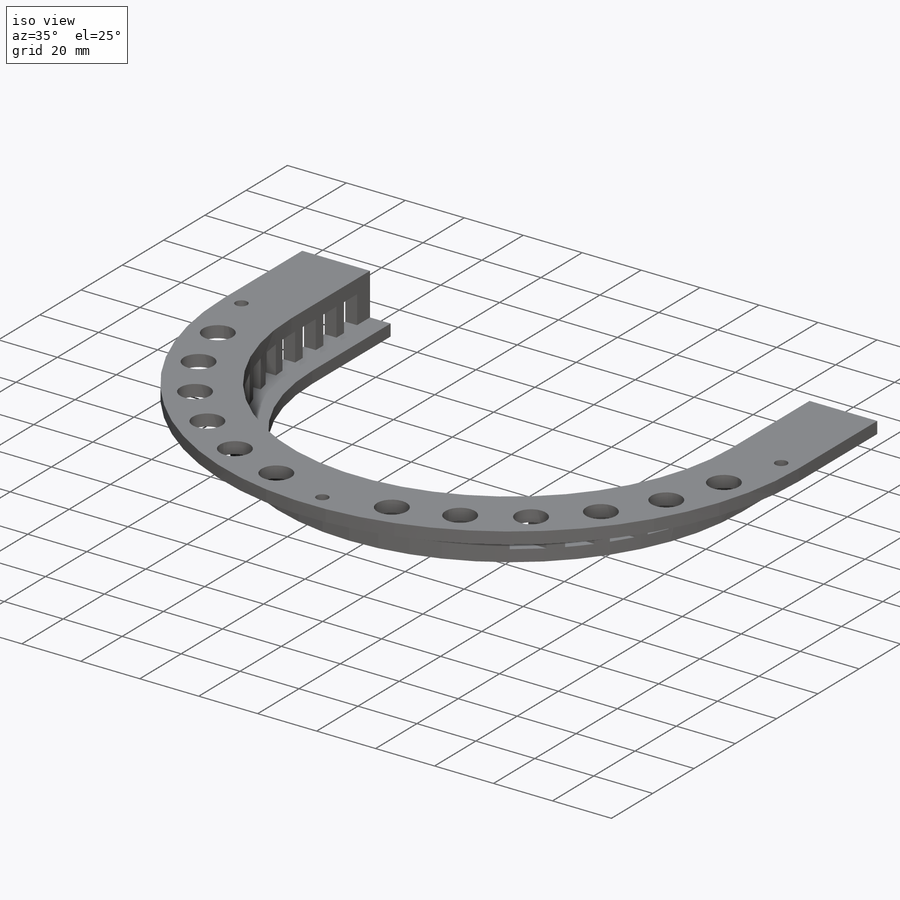
[diagram: iso view]
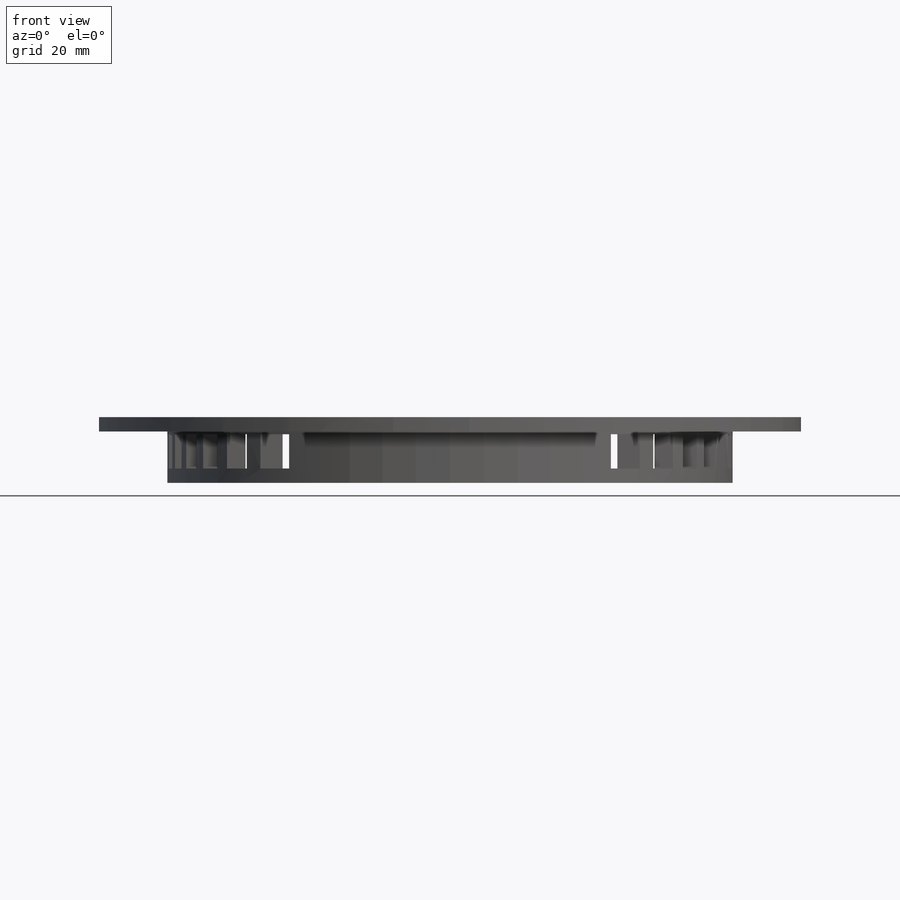
[diagram: front view]
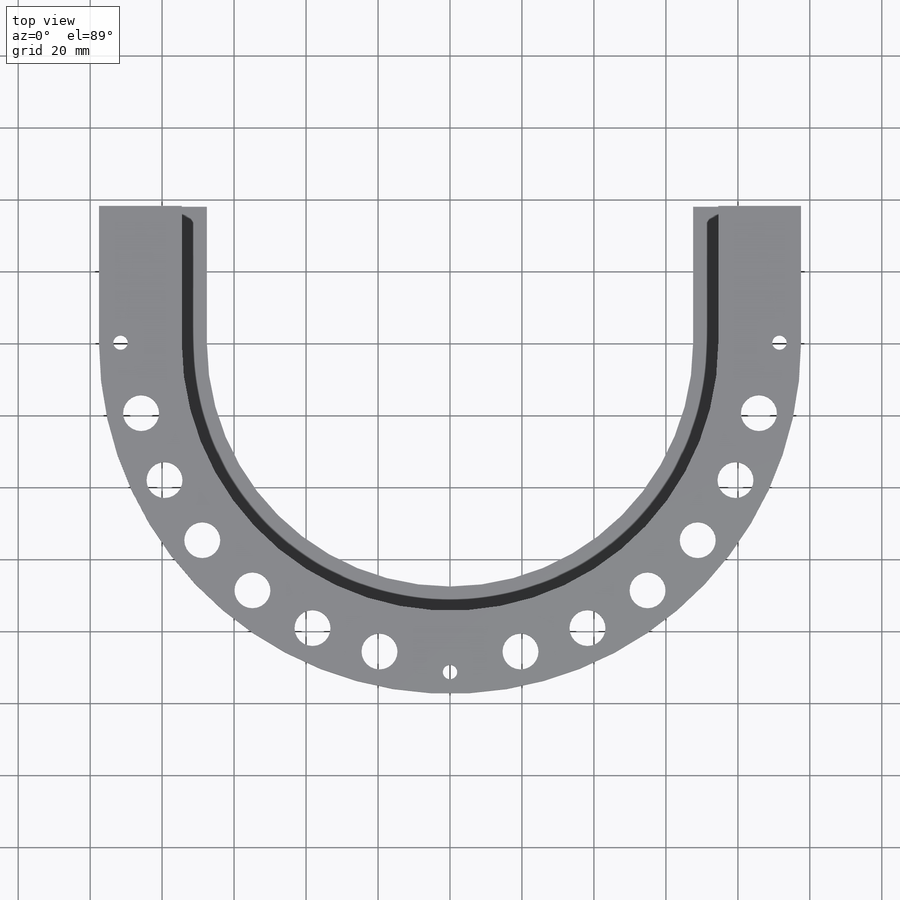
[diagram: top view]
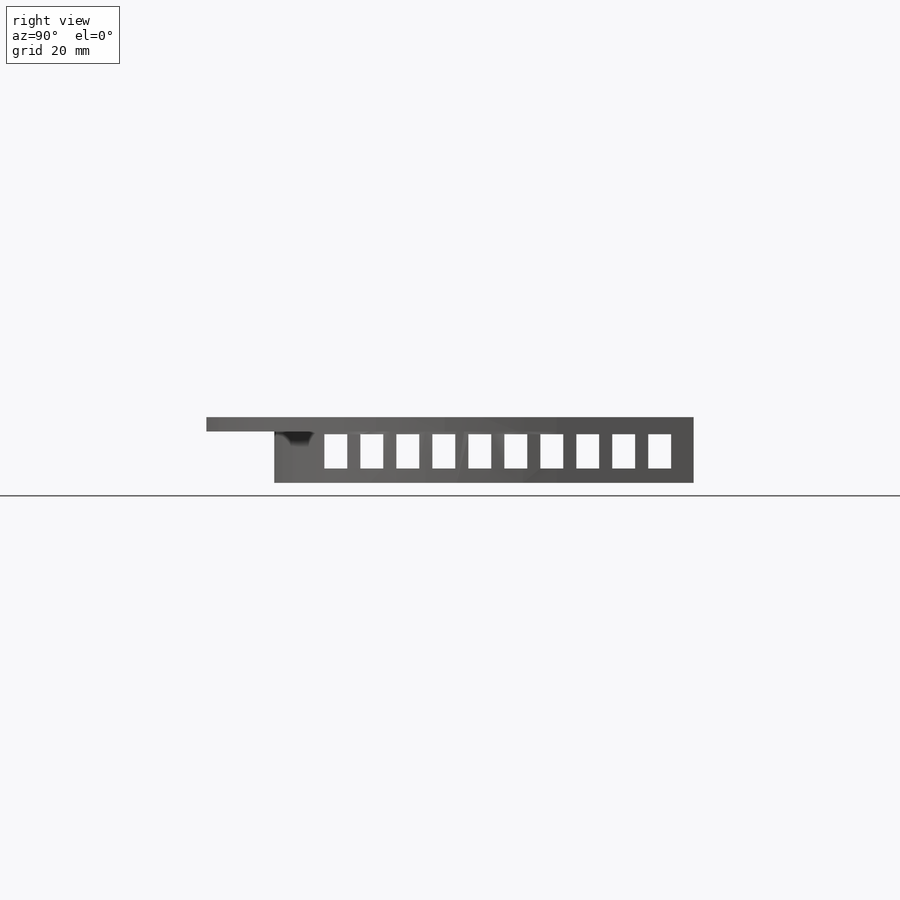
[diagram: right view]
SOLIDWORKS PART (.sldprt)
format: sldprt  version: not decoded by parser v0  size: 327,680 bytes
history: native  units: mm
features: sketch x5, extrude x2, plane x2, cut_extrude x2, material x1, revolve x1 (+13 scaffold rows collapsed)
feature tree (26):
  scaffold x13  (default folders/planes/origin — collapsed)
  material  "Material <not specified>"
  sketch  "Sketch1"  dims[D1=14.28mm D2=7.0mm D3=4.0mm D4=11.0mm D5=19.0mm D6=4.0mm]
  revolve  "Revolve1"  Angle=180deg
  sketch  "Sketch3"
  extrude  "Boss-Extrude1"  Depth=38mm
  extrude  "Boss-Extrude2"  [1 undecoded]
  sketch  "Sketch1<2>"  dims[D1=38.0mm]
  plane  "Plane1"  Offset=0mm
  sketch  "Sketch4"  dims[c1.D1=~4.472639mm c1.D2=4.0mm c1.D4=4.0mm c1.D6=4.0mm c1.D7=~8.231661mm c2.D1=19.0mm c2.D2=~90.081754mm c3.D1=13.0mm c3.D2=6.0mm c3.D3=13.0mm c3.D5=13.0mm]
  cut_extrude  "Cut-Extrude1"  [1 undecoded]
  plane  "Plane2"  Offset=0mm
  sketch  "Sketch5"  dims[c1.D1=6.35mm c1.D2=25.4mm c1.D3=9.5mm c1.D4=4.0mm c1.D5=4.0mm c2.D5=10.0]
  cut_extrude  "Cut-Extrude2"  [1 undecoded]
decode coverage: 6 of 10 modeling features carry decoded parameters
note: ~ marks probable driven/reference dimensions
note: 3 parameter values undecoded
summary: no parameter record found for 3 features
note: suppression state not decoded; provenance and decode notes live in map.json
